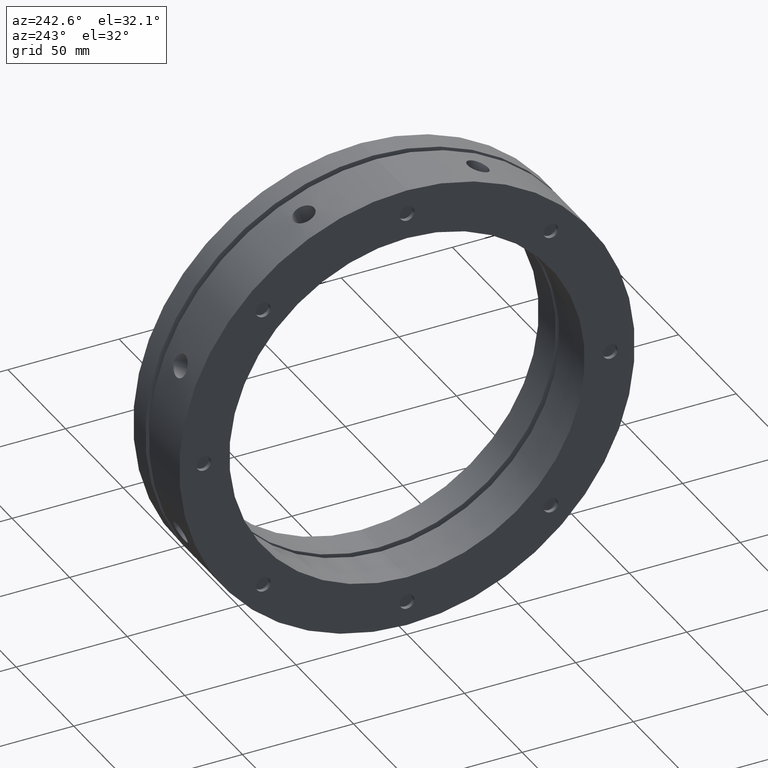
[diagram: clean part render]
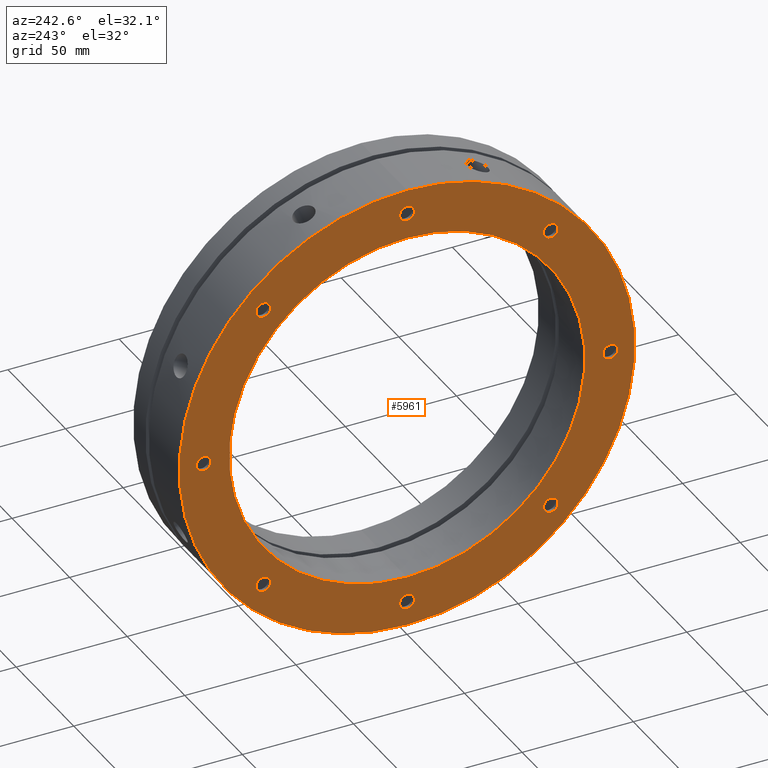
[diagram: same view with one face highlighted and labeled with its STEP entity id]
A machine part, auxiliary view. The second image highlights one B-rep face of the part: STEP entity #5961.
In plain terms, the highlighted planar face has unit normal (-1, 0, 0).
Its self-contained STEP definition (entity closure, byte-faithful):
#20 = AXIS2_PLACEMENT_3D ( 'NONE', #4173, #4174, #4175 ) ;
#21 = AXIS2_PLACEMENT_3D ( 'NONE', #4176, #4177, #4178 ) ;
#22 = AXIS2_PLACEMENT_3D ( 'NONE', #4179, #4180, #4181 ) ;
#23 = AXIS2_PLACEMENT_3D ( 'NONE', #4182, #4183, #4184 ) ;
#24 = AXIS2_PLACEMENT_3D ( 'NONE', #4185, #4186, #4187 ) ;
#25 = AXIS2_PLACEMENT_3D ( 'NONE', #4188, #4189, #4190 ) ;
#26 = AXIS2_PLACEMENT_3D ( 'NONE', #4191, #4192, #4193 ) ;
#27 = AXIS2_PLACEMENT_3D ( 'NONE', #4195, #4196, #4197 ) ;
#28 = AXIS2_PLACEMENT_3D ( 'NONE', #4199, #4200, #4201 ) ;
#30 = AXIS2_PLACEMENT_3D ( 'NONE', #4357, #4358, #4359 ) ;
#38 = AXIS2_PLACEMENT_3D ( 'NONE', #4442, #4443, #4444 ) ;
#130 = AXIS2_PLACEMENT_3D ( 'NONE', #431, #428, #433 ) ;
#428 = DIRECTION ( 'NONE',  ( -1.000000000000000000, 0.0000000000000000000, 0.0000000000000000000 ) ) ;
#430 = PLANE ( 'NONE',  #130 ) ;
#431 = CARTESIAN_POINT ( 'NONE',  ( -2.734275999999999900E-014, 91.25000000000000000, 0.0000000000000000000 ) ) ;
#433 = DIRECTION ( 'NONE',  ( 0.0000000000000000000, 0.0000000000000000000, 1.000000000000000000 ) ) ;
#840 = VERTEX_POINT ( 'NONE', #1418 ) ;
#858 = VERTEX_POINT ( 'NONE', #1439 ) ;
#865 = VERTEX_POINT ( 'NONE', #1446 ) ;
#870 = VERTEX_POINT ( 'NONE', #1451 ) ;
#871 = VERTEX_POINT ( 'NONE', #1452 ) ;
#874 = VERTEX_POINT ( 'NONE', #1455 ) ;
#875 = VERTEX_POINT ( 'NONE', #1456 ) ;
#878 = VERTEX_POINT ( 'NONE', #1459 ) ;
#879 = VERTEX_POINT ( 'NONE', #1460 ) ;
#882 = VERTEX_POINT ( 'NONE', #1463 ) ;
#883 = VERTEX_POINT ( 'NONE', #1464 ) ;
#886 = VERTEX_POINT ( 'NONE', #1467 ) ;
#887 = VERTEX_POINT ( 'NONE', #1468 ) ;
#890 = VERTEX_POINT ( 'NONE', #1471 ) ;
#891 = VERTEX_POINT ( 'NONE', #1472 ) ;
#894 = VERTEX_POINT ( 'NONE', #1475 ) ;
#895 = VERTEX_POINT ( 'NONE', #1476 ) ;
#898 = VERTEX_POINT ( 'NONE', #1479 ) ;
#899 = VERTEX_POINT ( 'NONE', #1480 ) ;
#1257 = EDGE_LOOP ( 'NONE', ( #3054, #3055 ) ) ;
#1259 = EDGE_LOOP ( 'NONE', ( #3052, #3053 ) ) ;
#1260 = EDGE_LOOP ( 'NONE', ( #3048, #3049 ) ) ;
#1261 = EDGE_LOOP ( 'NONE', ( #3050, #3051 ) ) ;
#1265 = EDGE_LOOP ( 'NONE', ( #3046, #3047 ) ) ;
#1266 = EDGE_LOOP ( 'NONE', ( #3056, #3057 ) ) ;
#1267 = EDGE_LOOP ( 'NONE', ( #3058, #3059 ) ) ;
#1268 = EDGE_LOOP ( 'NONE', ( #3060, #3061 ) ) ;
#1269 = EDGE_LOOP ( 'NONE', ( #3062, #3063 ) ) ;
#1270 = EDGE_LOOP ( 'NONE', ( #3064, #3065 ) ) ;
#1418 = CARTESIAN_POINT ( 'NONE',  ( -3.122502256758252800E-014, 0.0000000000000000000, -102.5000000000000100 ) ) ;
#1439 = CARTESIAN_POINT ( 'NONE',  ( -2.428612866367529900E-014, 0.0000000000000000000, -80.00000000000000000 ) ) ;
#1446 = CARTESIAN_POINT ( 'NONE',  ( -2.428612866367529900E-014, 9.797174393178826100E-015, 80.00000000000000000 ) ) ;
#1451 = CARTESIAN_POINT ( 'NONE',  ( -2.602085213965210600E-014, 0.0000000000000000000, 94.82350000000001000 ) ) ;
#1452 = CARTESIAN_POINT ( 'NONE',  ( -2.602085213965210600E-014, 4.070113636966220000E-016, 88.17649999999999000 ) ) ;
#1455 = CARTESIAN_POINT ( 'NONE',  ( -2.602085213965210600E-014, -64.70027047856909500, 68.02377047856910500 ) ) ;
#1456 = CARTESIAN_POINT ( 'NONE',  ( -2.602085213965210600E-014, -64.70027047856909500, 61.37677047856910700 ) ) ;
#1459 = CARTESIAN_POINT ( 'NONE',  ( -2.602085213965210600E-014, -91.50000000000000000, 3.323500000000000100 ) ) ;
#1460 = CARTESIAN_POINT ( 'NONE',  ( -2.602085213965210600E-014, -91.50000000000000000, -3.323500000000000100 ) ) ;
#1463 = CARTESIAN_POINT ( 'NONE',  ( -2.602085213965210600E-014, -64.70027047856910900, -61.37677047856909200 ) ) ;
#1464 = CARTESIAN_POINT ( 'NONE',  ( -2.602085213965210600E-014, -64.70027047856910900, -68.02377047856909100 ) ) ;
#1467 = CARTESIAN_POINT ( 'NONE',  ( -2.602085213965210600E-014, -1.776356999999999900E-014, -88.17649999999999000 ) ) ;
#1468 = CARTESIAN_POINT ( 'NONE',  ( -2.602085213965210600E-014, -1.735655863630337500E-014, -94.82350000000001000 ) ) ;
#1471 = CARTESIAN_POINT ( 'NONE',  ( -2.602085213965210600E-014, 64.70027047856908100, -61.37677047856910700 ) ) ;
#1472 = CARTESIAN_POINT ( 'NONE',  ( -2.602085213965210600E-014, 64.70027047856908100, -68.02377047856910500 ) ) ;
#1475 = CARTESIAN_POINT ( 'NONE',  ( -2.602085213965210600E-014, 91.50000000000000000, 3.323499999999982400 ) ) ;
#1476 = CARTESIAN_POINT ( 'NONE',  ( -2.602085213965210600E-014, 91.50000000000000000, -3.323500000000017900 ) ) ;
#1479 = CARTESIAN_POINT ( 'NONE',  ( -2.602085213965210600E-014, 64.70027047856912400, 68.02377047856909100 ) ) ;
#1480 = CARTESIAN_POINT ( 'NONE',  ( -2.602085213965210600E-014, 64.70027047856912400, 61.37677047856907800 ) ) ;
#1664 = CARTESIAN_POINT ( 'NONE',  ( -2.602085213965210600E-014, 64.70027047856912400, 64.70027047856908100 ) ) ;
#1665 = DIRECTION ( 'NONE',  ( 1.000000000000000000, -0.0000000000000000000, -0.0000000000000000000 ) ) ;
#1666 = DIRECTION ( 'NONE',  ( 0.0000000000000000000, 0.0000000000000000000, 1.000000000000000000 ) ) ;
#1829 = CARTESIAN_POINT ( 'NONE',  ( -2.428612866367529900E-014, 0.0000000000000000000, 0.0000000000000000000 ) ) ;
#1830 = DIRECTION ( 'NONE',  ( 1.000000000000000000, 0.0000000000000000000, 0.0000000000000000000 ) ) ;
#1831 = DIRECTION ( 'NONE',  ( 0.0000000000000000000, 0.0000000000000000000, -1.000000000000000000 ) ) ;
#1844 = CARTESIAN_POINT ( 'NONE',  ( -2.602085213965210600E-014, 0.0000000000000000000, 91.50000000000000000 ) ) ;
#1845 = DIRECTION ( 'NONE',  ( 1.000000000000000000, -0.0000000000000000000, -0.0000000000000000000 ) ) ;
#1846 = DIRECTION ( 'NONE',  ( 0.0000000000000000000, 0.0000000000000000000, 1.000000000000000000 ) ) ;
#1854 = CARTESIAN_POINT ( 'NONE',  ( -2.602085213965210600E-014, -64.70027047856909500, 64.70027047856910900 ) ) ;
#1855 = DIRECTION ( 'NONE',  ( 1.000000000000000000, -0.0000000000000000000, -0.0000000000000000000 ) ) ;
#1856 = DIRECTION ( 'NONE',  ( 0.0000000000000000000, 0.0000000000000000000, 1.000000000000000000 ) ) ;
#1864 = CARTESIAN_POINT ( 'NONE',  ( -2.602085213965210600E-014, -91.50000000000000000, 0.0000000000000000000 ) ) ;
#1865 = DIRECTION ( 'NONE',  ( 1.000000000000000000, -0.0000000000000000000, -0.0000000000000000000 ) ) ;
#1866 = DIRECTION ( 'NONE',  ( 0.0000000000000000000, 0.0000000000000000000, 1.000000000000000000 ) ) ;
#1874 = CARTESIAN_POINT ( 'NONE',  ( -2.602085213965210600E-014, -64.70027047856910900, -64.70027047856909500 ) ) ;
#1875 = DIRECTION ( 'NONE',  ( 1.000000000000000000, -0.0000000000000000000, -0.0000000000000000000 ) ) ;
#1876 = DIRECTION ( 'NONE',  ( 0.0000000000000000000, 0.0000000000000000000, 1.000000000000000000 ) ) ;
#1884 = CARTESIAN_POINT ( 'NONE',  ( -2.602085213965210600E-014, -1.776356999999999900E-014, -91.50000000000000000 ) ) ;
#1885 = DIRECTION ( 'NONE',  ( 1.000000000000000000, -0.0000000000000000000, -0.0000000000000000000 ) ) ;
#1886 = DIRECTION ( 'NONE',  ( 0.0000000000000000000, 0.0000000000000000000, 1.000000000000000000 ) ) ;
#1894 = CARTESIAN_POINT ( 'NONE',  ( -2.602085213965210600E-014, 64.70027047856908100, -64.70027047856910900 ) ) ;
#1895 = DIRECTION ( 'NONE',  ( 1.000000000000000000, -0.0000000000000000000, -0.0000000000000000000 ) ) ;
#1896 = DIRECTION ( 'NONE',  ( 0.0000000000000000000, 0.0000000000000000000, 1.000000000000000000 ) ) ;
#1904 = CARTESIAN_POINT ( 'NONE',  ( -2.602085213965210600E-014, 91.50000000000000000, -1.776356999999999900E-014 ) ) ;
#1905 = DIRECTION ( 'NONE',  ( 1.000000000000000000, -0.0000000000000000000, -0.0000000000000000000 ) ) ;
#1906 = DIRECTION ( 'NONE',  ( 0.0000000000000000000, 0.0000000000000000000, 1.000000000000000000 ) ) ;
#2071 = CARTESIAN_POINT ( 'NONE',  ( -3.122502256758252800E-014, 1.255262969126037200E-014, 102.5000000000000100 ) ) ;
#2403 = AXIS2_PLACEMENT_3D ( 'NONE', #1904, #1905, #1906 ) ;
#2405 = AXIS2_PLACEMENT_3D ( 'NONE', #1894, #1895, #1896 ) ;
#2407 = AXIS2_PLACEMENT_3D ( 'NONE', #1884, #1885, #1886 ) ;
#2409 = AXIS2_PLACEMENT_3D ( 'NONE', #1874, #1875, #1876 ) ;
#2411 = AXIS2_PLACEMENT_3D ( 'NONE', #1864, #1865, #1866 ) ;
#2413 = AXIS2_PLACEMENT_3D ( 'NONE', #1854, #1855, #1856 ) ;
#2415 = AXIS2_PLACEMENT_3D ( 'NONE', #1844, #1845, #1846 ) ;
#2418 = AXIS2_PLACEMENT_3D ( 'NONE', #1829, #1830, #1831 ) ;
#2427 = AXIS2_PLACEMENT_3D ( 'NONE', #1664, #1665, #1666 ) ;
#2429 = EDGE_CURVE ( 'NONE', #898, #899, #3148, .T. ) ;
#3046 = ORIENTED_EDGE ( 'NONE', *, *, #5711, .T. ) ;
#3047 = ORIENTED_EDGE ( 'NONE', *, *, #5377, .T. ) ;
#3048 = ORIENTED_EDGE ( 'NONE', *, *, #5383, .T. ) ;
#3049 = ORIENTED_EDGE ( 'NONE', *, *, #5710, .T. ) ;
#3050 = ORIENTED_EDGE ( 'NONE', *, *, #5387, .T. ) ;
#3051 = ORIENTED_EDGE ( 'NONE', *, *, #5709, .T. ) ;
#3052 = ORIENTED_EDGE ( 'NONE', *, *, #5391, .T. ) ;
#3053 = ORIENTED_EDGE ( 'NONE', *, *, #5708, .T. ) ;
#3054 = ORIENTED_EDGE ( 'NONE', *, *, #5395, .T. ) ;
#3055 = ORIENTED_EDGE ( 'NONE', *, *, #5707, .T. ) ;
#3056 = ORIENTED_EDGE ( 'NONE', *, *, #5399, .T. ) ;
#3057 = ORIENTED_EDGE ( 'NONE', *, *, #5706, .T. ) ;
#3058 = ORIENTED_EDGE ( 'NONE', *, *, #5403, .T. ) ;
#3059 = ORIENTED_EDGE ( 'NONE', *, *, #5705, .T. ) ;
#3060 = ORIENTED_EDGE ( 'NONE', *, *, #5407, .T. ) ;
#3061 = ORIENTED_EDGE ( 'NONE', *, *, #5704, .T. ) ;
#3062 = ORIENTED_EDGE ( 'NONE', *, *, #2429, .T. ) ;
#3063 = ORIENTED_EDGE ( 'NONE', *, *, #5703, .T. ) ;
#3064 = ORIENTED_EDGE ( 'NONE', *, *, #5739, .F. ) ;
#3065 = ORIENTED_EDGE ( 'NONE', *, *, #5717, .F. ) ;
#3148 = CIRCLE ( 'NONE', #2427, 3.323500000000007200 ) ;
#3212 = CIRCLE ( 'NONE', #2418, 80.00000000000000000 ) ;
#3222 = CIRCLE ( 'NONE', #2415, 3.323500000000007200 ) ;
#3228 = CIRCLE ( 'NONE', #2413, 3.323500000000007200 ) ;
#3234 = CIRCLE ( 'NONE', #2411, 3.323500000000000100 ) ;
#3240 = CIRCLE ( 'NONE', #2409, 3.323500000000000100 ) ;
#3246 = CIRCLE ( 'NONE', #2407, 3.323500000000007200 ) ;
#3252 = CIRCLE ( 'NONE', #2405, 3.323500000000000100 ) ;
#3258 = CIRCLE ( 'NONE', #2403, 3.323500000000000100 ) ;
#3620 = CIRCLE ( 'NONE', #20, 3.323500000000007200 ) ;
#3621 = CIRCLE ( 'NONE', #21, 3.323500000000000100 ) ;
#3622 = CIRCLE ( 'NONE', #22, 3.323500000000000100 ) ;
#3623 = CIRCLE ( 'NONE', #23, 3.323500000000007200 ) ;
#3624 = CIRCLE ( 'NONE', #24, 3.323500000000000100 ) ;
#3625 = CIRCLE ( 'NONE', #25, 3.323500000000000100 ) ;
#3626 = CIRCLE ( 'NONE', #26, 3.323500000000007200 ) ;
#3627 = CIRCLE ( 'NONE', #27, 3.323500000000007200 ) ;
#3628 = CIRCLE ( 'NONE', #28, 80.00000000000000000 ) ;
#3631 = CIRCLE ( 'NONE', #30, 102.5000000000000100 ) ;
#4173 = CARTESIAN_POINT ( 'NONE',  ( -2.602085213965210600E-014, 64.70027047856912400, 64.70027047856908100 ) ) ;
#4174 = DIRECTION ( 'NONE',  ( 1.000000000000000000, -0.0000000000000000000, -0.0000000000000000000 ) ) ;
#4175 = DIRECTION ( 'NONE',  ( 0.0000000000000000000, 0.0000000000000000000, 1.000000000000000000 ) ) ;
#4176 = CARTESIAN_POINT ( 'NONE',  ( -2.602085213965210600E-014, 91.50000000000000000, -1.776356999999999900E-014 ) ) ;
#4177 = DIRECTION ( 'NONE',  ( 1.000000000000000000, -0.0000000000000000000, -0.0000000000000000000 ) ) ;
#4178 = DIRECTION ( 'NONE',  ( 0.0000000000000000000, 0.0000000000000000000, 1.000000000000000000 ) ) ;
#4179 = CARTESIAN_POINT ( 'NONE',  ( -2.602085213965210600E-014, 64.70027047856908100, -64.70027047856910900 ) ) ;
#4180 = DIRECTION ( 'NONE',  ( 1.000000000000000000, -0.0000000000000000000, -0.0000000000000000000 ) ) ;
#4181 = DIRECTION ( 'NONE',  ( 0.0000000000000000000, 0.0000000000000000000, 1.000000000000000000 ) ) ;
#4182 = CARTESIAN_POINT ( 'NONE',  ( -2.602085213965210600E-014, -1.776356999999999900E-014, -91.50000000000000000 ) ) ;
#4183 = DIRECTION ( 'NONE',  ( 1.000000000000000000, -0.0000000000000000000, -0.0000000000000000000 ) ) ;
#4184 = DIRECTION ( 'NONE',  ( 0.0000000000000000000, 0.0000000000000000000, 1.000000000000000000 ) ) ;
#4185 = CARTESIAN_POINT ( 'NONE',  ( -2.602085213965210600E-014, -64.70027047856910900, -64.70027047856909500 ) ) ;
#4186 = DIRECTION ( 'NONE',  ( 1.000000000000000000, -0.0000000000000000000, -0.0000000000000000000 ) ) ;
#4187 = DIRECTION ( 'NONE',  ( 0.0000000000000000000, 0.0000000000000000000, 1.000000000000000000 ) ) ;
#4188 = CARTESIAN_POINT ( 'NONE',  ( -2.602085213965210600E-014, -91.50000000000000000, 0.0000000000000000000 ) ) ;
#4189 = DIRECTION ( 'NONE',  ( 1.000000000000000000, -0.0000000000000000000, -0.0000000000000000000 ) ) ;
#4190 = DIRECTION ( 'NONE',  ( 0.0000000000000000000, 0.0000000000000000000, 1.000000000000000000 ) ) ;
#4191 = CARTESIAN_POINT ( 'NONE',  ( -2.602085213965210600E-014, -64.70027047856909500, 64.70027047856910900 ) ) ;
#4192 = DIRECTION ( 'NONE',  ( 1.000000000000000000, -0.0000000000000000000, -0.0000000000000000000 ) ) ;
#4193 = DIRECTION ( 'NONE',  ( 0.0000000000000000000, 0.0000000000000000000, 1.000000000000000000 ) ) ;
#4195 = CARTESIAN_POINT ( 'NONE',  ( -2.602085213965210600E-014, 0.0000000000000000000, 91.50000000000000000 ) ) ;
#4196 = DIRECTION ( 'NONE',  ( 1.000000000000000000, -0.0000000000000000000, -0.0000000000000000000 ) ) ;
#4197 = DIRECTION ( 'NONE',  ( 0.0000000000000000000, 0.0000000000000000000, 1.000000000000000000 ) ) ;
#4199 = CARTESIAN_POINT ( 'NONE',  ( -2.428612866367529900E-014, 0.0000000000000000000, 0.0000000000000000000 ) ) ;
#4200 = DIRECTION ( 'NONE',  ( 1.000000000000000000, 0.0000000000000000000, 0.0000000000000000000 ) ) ;
#4201 = DIRECTION ( 'NONE',  ( 0.0000000000000000000, 0.0000000000000000000, -1.000000000000000000 ) ) ;
#4357 = CARTESIAN_POINT ( 'NONE',  ( -3.122502256758252800E-014, 0.0000000000000000000, 0.0000000000000000000 ) ) ;
#4358 = DIRECTION ( 'NONE',  ( 1.000000000000000000, 0.0000000000000000000, 0.0000000000000000000 ) ) ;
#4359 = DIRECTION ( 'NONE',  ( 0.0000000000000000000, 0.0000000000000000000, -1.000000000000000000 ) ) ;
#4442 = CARTESIAN_POINT ( 'NONE',  ( -3.122502256758252800E-014, 0.0000000000000000000, 0.0000000000000000000 ) ) ;
#4443 = DIRECTION ( 'NONE',  ( 1.000000000000000000, 0.0000000000000000000, 0.0000000000000000000 ) ) ;
#4444 = DIRECTION ( 'NONE',  ( 0.0000000000000000000, 0.0000000000000000000, -1.000000000000000000 ) ) ;
#4818 = CIRCLE ( 'NONE', #38, 102.5000000000000100 ) ;
#5053 = FACE_BOUND ( 'NONE', #1265, .T. ) ;
#5055 = FACE_BOUND ( 'NONE', #1259, .T. ) ;
#5057 = FACE_BOUND ( 'NONE', #1261, .T. ) ;
#5059 = FACE_BOUND ( 'NONE', #1257, .T. ) ;
#5061 = FACE_BOUND ( 'NONE', #1260, .T. ) ;
#5062 = FACE_BOUND ( 'NONE', #1266, .T. ) ;
#5063 = FACE_BOUND ( 'NONE', #1267, .T. ) ;
#5064 = FACE_BOUND ( 'NONE', #1268, .T. ) ;
#5065 = FACE_BOUND ( 'NONE', #1269, .T. ) ;
#5066 = FACE_OUTER_BOUND ( 'NONE', #1270, .T. ) ;
#5377 = EDGE_CURVE ( 'NONE', #865, #858, #3212, .T. ) ;
#5383 = EDGE_CURVE ( 'NONE', #870, #871, #3222, .T. ) ;
#5387 = EDGE_CURVE ( 'NONE', #874, #875, #3228, .T. ) ;
#5391 = EDGE_CURVE ( 'NONE', #878, #879, #3234, .T. ) ;
#5395 = EDGE_CURVE ( 'NONE', #882, #883, #3240, .T. ) ;
#5399 = EDGE_CURVE ( 'NONE', #886, #887, #3246, .T. ) ;
#5403 = EDGE_CURVE ( 'NONE', #890, #891, #3252, .T. ) ;
#5407 = EDGE_CURVE ( 'NONE', #894, #895, #3258, .T. ) ;
#5492 = VERTEX_POINT ( 'NONE', #2071 ) ;
#5703 = EDGE_CURVE ( 'NONE', #899, #898, #3620, .T. ) ;
#5704 = EDGE_CURVE ( 'NONE', #895, #894, #3621, .T. ) ;
#5705 = EDGE_CURVE ( 'NONE', #891, #890, #3622, .T. ) ;
#5706 = EDGE_CURVE ( 'NONE', #887, #886, #3623, .T. ) ;
#5707 = EDGE_CURVE ( 'NONE', #883, #882, #3624, .T. ) ;
#5708 = EDGE_CURVE ( 'NONE', #879, #878, #3625, .T. ) ;
#5709 = EDGE_CURVE ( 'NONE', #875, #874, #3626, .T. ) ;
#5710 = EDGE_CURVE ( 'NONE', #871, #870, #3627, .T. ) ;
#5711 = EDGE_CURVE ( 'NONE', #858, #865, #3628, .T. ) ;
#5717 = EDGE_CURVE ( 'NONE', #5492, #840, #3631, .T. ) ;
#5739 = EDGE_CURVE ( 'NONE', #840, #5492, #4818, .T. ) ;
#5961 = ADVANCED_FACE ( 'NONE', ( #5053, #5061, #5057, #5055, #5059, #5062, #5063, #5064, #5065, #5066 ), #430, .T. ) ;